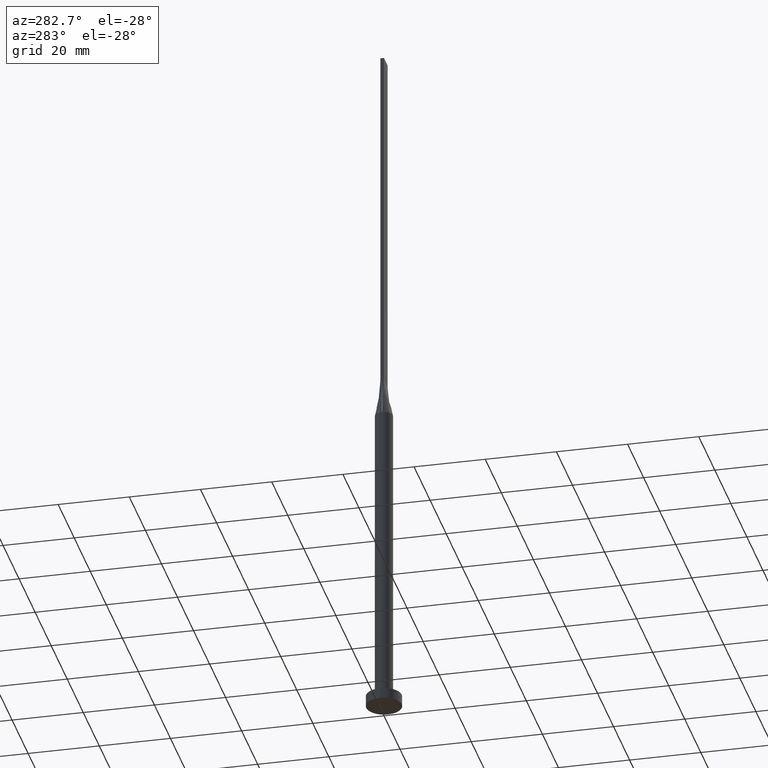
[diagram: clean part render]
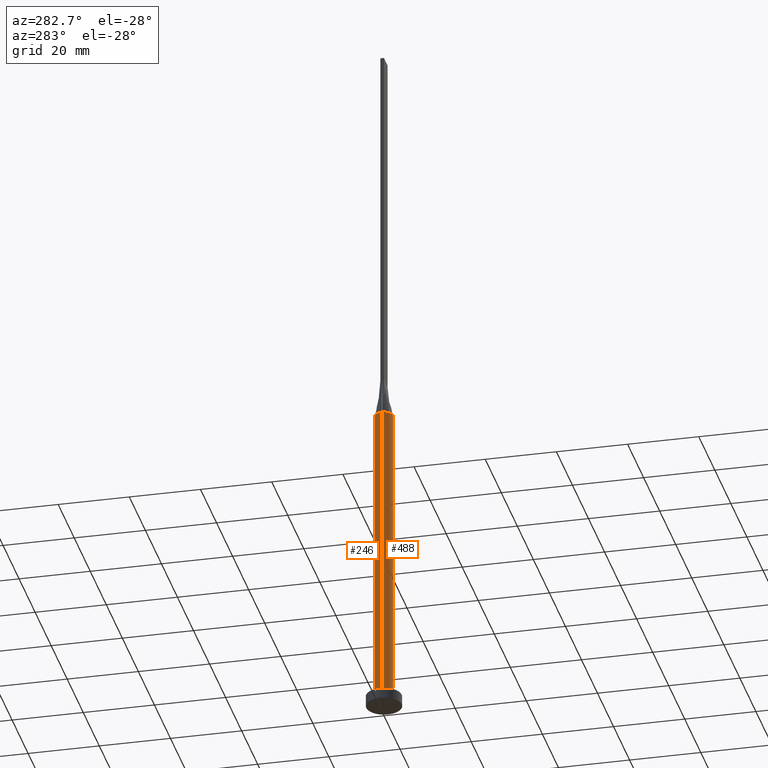
[diagram: same view with one multi-face feature highlighted, each face labeled with its STEP entity id]
A machine part, auxiliary view. The highlighted faces form ONE feature: a constant-radius fillet chain: 2 tangent blend faces with common blend radius 2.5 mm. The faces share edges in the B-rep.
Their STEP definitions:
[1] entity #246 (Cylinder):
#8 = EDGE_CURVE ( 'NONE', #249, #340, #45, .T. ) ;
#17 = DIRECTION ( 'NONE',  ( 0.000000000000000000, 0.000000000000000000, 1.000000000000000000 ) ) ;
#24 = CARTESIAN_POINT ( 'NONE',  ( 2.500000000000000000, 3.061616997868383141E-16, 90.00000000000000000 ) ) ;
#27 = VERTEX_POINT ( 'NONE', #83 ) ;
#32 = ORIENTED_EDGE ( 'NONE', *, *, #8, .F. ) ;
#45 = CIRCLE ( 'NONE', #456, 2.500000000000000000 ) ;
#46 = EDGE_CURVE ( 'NONE', #27, #336, #479, .T. ) ;
#64 = DIRECTION ( 'NONE',  ( -0.000000000000000000, -0.000000000000000000, -1.000000000000000000 ) ) ;
#71 = CARTESIAN_POINT ( 'NONE',  ( -2.440694335308545071, 0.5423767520433731004, 90.00000000000000000 ) ) ;
#83 = CARTESIAN_POINT ( 'NONE',  ( 2.500000000000000000, 3.061616997868383141E-16, 3.000000000000000000 ) ) ;
#91 = CARTESIAN_POINT ( 'NONE',  ( 1.260416918790968843, 2.182794756967427752, 90.00000000000000000 ) ) ;
#93 = CIRCLE ( 'NONE', #275, 2.500000000000000000 ) ;
#95 = DIRECTION ( 'NONE',  ( -0.000000000000000000, -0.000000000000000000, -1.000000000000000000 ) ) ;
#96 = CARTESIAN_POINT ( 'NONE',  ( -2.396350003401058082, 0.7408555563113466969, 90.00000000000001421 ) ) ;
#99 = CARTESIAN_POINT ( 'NONE',  ( -1.519400572660313253, 2.006070808634367264, 90.00000000000001421 ) ) ;
#114 = DIRECTION ( 'NONE',  ( 0.000000000000000000, 0.000000000000000000, 1.000000000000000000 ) ) ;
#143 = CARTESIAN_POINT ( 'NONE',  ( -0.6674771052374470770, 2.430579781493059421, 89.99999999999998579 ) ) ;
#144 = CARTESIAN_POINT ( 'NONE',  ( 0.000000000000000000, 0.000000000000000000, 90.00000000000000000 ) ) ;
#147 = CARTESIAN_POINT ( 'NONE',  ( -2.440694335308545071, 0.5423767520433731004, 90.00000000000000000 ) ) ;
#150 = EDGE_CURVE ( 'NONE', #340, #282, #224, .T. ) ;
#173 = LINE ( 'NONE', #524, #442 ) ;
#224 = B_SPLINE_CURVE_WITH_KNOTS ( 'NONE', 3,
 ( #309, #432, #480, #353, #533, #441, #91, #229, #269, #530, #143, #409, #99, #574, #534, #489, #96, #147 ),
 .UNSPECIFIED., .F., .F.,
 ( 4, 2, 2, 2, 2, 2, 2, 2, 4 ),
 ( 0.000000000000000000, 0.1249999999999999722, 0.2500000000000000000, 0.3750000000000000000, 0.5000000000000001110, 0.6250000000000001110, 0.7500000000000000000, 0.8750000000000000000, 1.000000000000000000 ),
 .UNSPECIFIED. ) ;
#229 = CARTESIAN_POINT ( 'NONE',  ( 0.6674771052374470770, 2.430579781493058977, 89.99999999999997158 ) ) ;
#237 = AXIS2_PLACEMENT_3D ( 'NONE', #502, #114, #373 ) ;
#240 = DIRECTION ( 'NONE',  ( 1.000000000000000000, 0.000000000000000000, 0.000000000000000000 ) ) ;
#246 = ADVANCED_FACE ( 'NONE', ( #316 ), #531, .T. ) ;
#249 = VERTEX_POINT ( 'NONE', #568 ) ;
#263 = CARTESIAN_POINT ( 'NONE',  ( -2.500000000000000000, 0.000000000000000000, 3.000000000000000000 ) ) ;
#265 = AXIS2_PLACEMENT_3D ( 'NONE', #144, #95, #271 ) ;
#269 = CARTESIAN_POINT ( 'NONE',  ( 0.3342381693191150416, 2.499999999999999556, 90.00000000000000000 ) ) ;
#271 = DIRECTION ( 'NONE',  ( -1.000000000000000000, 0.000000000000000000, 0.000000000000000000 ) ) ;
#275 = AXIS2_PLACEMENT_3D ( 'NONE', #545, #17, #240 ) ;
#278 = LINE ( 'NONE', #24, #285 ) ;
#282 = VERTEX_POINT ( 'NONE', #71 ) ;
#285 = VECTOR ( 'NONE', #64, 1000.000000000000000 ) ;
#309 = CARTESIAN_POINT ( 'NONE',  ( 2.440676307083422980, 0.5423728264510006003, 90.00000000000000000 ) ) ;
#316 = FACE_OUTER_BOUND ( 'NONE', #470, .T. ) ;
#328 = ORIENTED_EDGE ( 'NONE', *, *, #437, .F. ) ;
#333 = EDGE_CURVE ( 'NONE', #455, #336, #173, .T. ) ;
#336 = VERTEX_POINT ( 'NONE', #263 ) ;
#340 = VERTEX_POINT ( 'NONE', #430 ) ;
#353 = CARTESIAN_POINT ( 'NONE',  ( 2.093723281432890104, 1.388001797188529007, 89.99999999999995737 ) ) ;
#367 = ORIENTED_EDGE ( 'NONE', *, *, #150, .F. ) ;
#373 = DIRECTION ( 'NONE',  ( 1.000000000000000000, 0.000000000000000000, 0.000000000000000000 ) ) ;
#384 = ORIENTED_EDGE ( 'NONE', *, *, #46, .T. ) ;
#396 = CARTESIAN_POINT ( 'NONE',  ( 0.000000000000000000, 0.000000000000000000, 90.00000000000000000 ) ) ;
#409 = CARTESIAN_POINT ( 'NONE',  ( -1.260416918790968843, 2.182794756967428196, 90.00000000000000000 ) ) ;
#417 = CARTESIAN_POINT ( 'NONE',  ( -2.499645589935823420, -1.700711608024726496E-15, 90.00000000000000000 ) ) ;
#430 = CARTESIAN_POINT ( 'NONE',  ( 2.440676307083422980, 0.5423728264510006003, 90.00000000000000000 ) ) ;
#431 = DIRECTION ( 'NONE',  ( 1.000000000000000000, 0.000000000000000000, 0.000000000000000000 ) ) ;
#432 = CARTESIAN_POINT ( 'NONE',  ( 2.396350003401058526, 0.7408555563113465858, 90.00000000000001421 ) ) ;
#437 = EDGE_CURVE ( 'NONE', #282, #455, #93, .T. ) ;
#441 = CARTESIAN_POINT ( 'NONE',  ( 1.519400572660313031, 2.006070808634367708, 89.99999999999998579 ) ) ;
#442 = VECTOR ( 'NONE', #521, 1000.000000000000000 ) ;
#451 = EDGE_CURVE ( 'NONE', #249, #27, #278, .T. ) ;
#455 = VERTEX_POINT ( 'NONE', #417 ) ;
#456 = AXIS2_PLACEMENT_3D ( 'NONE', #396, #529, #431 ) ;
#470 = EDGE_LOOP ( 'NONE', ( #32, #506, #384, #501, #328, #367 ) ) ;
#479 = CIRCLE ( 'NONE', #237, 2.500000000000000000 ) ;
#480 = CARTESIAN_POINT ( 'NONE',  ( 2.323660390030918954, 0.9543733860570833283, 90.00000000000001421 ) ) ;
#489 = CARTESIAN_POINT ( 'NONE',  ( -2.323660390030918510, 0.9543733860570832173, 90.00000000000001421 ) ) ;
#501 = ORIENTED_EDGE ( 'NONE', *, *, #333, .F. ) ;
#502 = CARTESIAN_POINT ( 'NONE',  ( 0.000000000000000000, 0.000000000000000000, 3.000000000000000000 ) ) ;
#506 = ORIENTED_EDGE ( 'NONE', *, *, #451, .T. ) ;
#521 = DIRECTION ( 'NONE',  ( -0.000000000000000000, -0.000000000000000000, -1.000000000000000000 ) ) ;
#524 = CARTESIAN_POINT ( 'NONE',  ( -2.500000000000000000, 0.000000000000000000, 90.00000000000000000 ) ) ;
#529 = DIRECTION ( 'NONE',  ( 0.000000000000000000, 0.000000000000000000, 1.000000000000000000 ) ) ;
#530 = CARTESIAN_POINT ( 'NONE',  ( -0.3342381693191151526, 2.499999999999999556, 90.00000000000001421 ) ) ;
#531 = CYLINDRICAL_SURFACE ( 'NONE', #265, 2.500000000000000000 ) ;
#533 = CARTESIAN_POINT ( 'NONE',  ( 1.935644909179608186, 1.608159499248285051, 89.99999999999997158 ) ) ;
#534 = CARTESIAN_POINT ( 'NONE',  ( -2.093723281432891437, 1.388001797188529451, 90.00000000000002842 ) ) ;
#545 = CARTESIAN_POINT ( 'NONE',  ( 0.000000000000000000, 0.000000000000000000, 90.00000000000000000 ) ) ;
#568 = CARTESIAN_POINT ( 'NONE',  ( 2.499645589935823420, 5.999196936655281332E-16, 90.00000000000000000 ) ) ;
#574 = CARTESIAN_POINT ( 'NONE',  ( -1.935644909179609297, 1.608159499248285718, 89.99999999999997158 ) ) ;
[2] entity #488 (Cylinder):
#9 = CARTESIAN_POINT ( 'NONE',  ( 0.000000000000000000, 0.000000000000000000, 3.000000000000000000 ) ) ;
#14 = CARTESIAN_POINT ( 'NONE',  ( 0.000000000000000000, 0.000000000000000000, 90.00000000000000000 ) ) ;
#16 = DIRECTION ( 'NONE',  ( 0.000000000000000000, 0.000000000000000000, 1.000000000000000000 ) ) ;
#19 = ORIENTED_EDGE ( 'NONE', *, *, #310, .F. ) ;
#24 = CARTESIAN_POINT ( 'NONE',  ( 2.500000000000000000, 3.061616997868383141E-16, 90.00000000000000000 ) ) ;
#27 = VERTEX_POINT ( 'NONE', #83 ) ;
#64 = DIRECTION ( 'NONE',  ( -0.000000000000000000, -0.000000000000000000, -1.000000000000000000 ) ) ;
#83 = CARTESIAN_POINT ( 'NONE',  ( 2.500000000000000000, 3.061616997868383141E-16, 3.000000000000000000 ) ) ;
#107 = CYLINDRICAL_SURFACE ( 'NONE', #550, 2.500000000000000000 ) ;
#112 = CARTESIAN_POINT ( 'NONE',  ( 0.000000000000000000, 0.000000000000000000, 90.00000000000000000 ) ) ;
#141 = DIRECTION ( 'NONE',  ( -1.000000000000000000, 0.000000000000000000, 0.000000000000000000 ) ) ;
#154 = DIRECTION ( 'NONE',  ( -0.000000000000000000, -0.000000000000000000, -1.000000000000000000 ) ) ;
#164 = EDGE_CURVE ( 'NONE', #197, #249, #382, .T. ) ;
#167 = AXIS2_PLACEMENT_3D ( 'NONE', #418, #16, #549 ) ;
#173 = LINE ( 'NONE', #524, #442 ) ;
#190 = DIRECTION ( 'NONE',  ( 0.000000000000000000, 0.000000000000000000, 1.000000000000000000 ) ) ;
#195 = DIRECTION ( 'NONE',  ( 0.000000000000000000, 0.000000000000000000, 1.000000000000000000 ) ) ;
#197 = VERTEX_POINT ( 'NONE', #270 ) ;
#249 = VERTEX_POINT ( 'NONE', #568 ) ;
#256 = AXIS2_PLACEMENT_3D ( 'NONE', #9, #190, #365 ) ;
#257 = ORIENTED_EDGE ( 'NONE', *, *, #554, .F. ) ;
#263 = CARTESIAN_POINT ( 'NONE',  ( -2.500000000000000000, 0.000000000000000000, 3.000000000000000000 ) ) ;
#268 = EDGE_LOOP ( 'NONE', ( #448, #322, #19, #257, #452, #525 ) ) ;
#270 = CARTESIAN_POINT ( 'NONE',  ( 2.440706242928429415, -0.5423794613208688942, 90.00000000000000000 ) ) ;
#278 = LINE ( 'NONE', #24, #285 ) ;
#279 = DIRECTION ( 'NONE',  ( 1.000000000000000000, -4.440892098500626162E-15, 0.000000000000000000 ) ) ;
#285 = VECTOR ( 'NONE', #64, 1000.000000000000000 ) ;
#305 = CARTESIAN_POINT ( 'NONE',  ( -2.440688158044365785, -0.5423755258804862089, 90.00000000000000000 ) ) ;
#310 = EDGE_CURVE ( 'NONE', #371, #197, #560, .T. ) ;
#322 = ORIENTED_EDGE ( 'NONE', *, *, #164, .F. ) ;
#333 = EDGE_CURVE ( 'NONE', #455, #336, #173, .T. ) ;
#336 = VERTEX_POINT ( 'NONE', #263 ) ;
#365 = DIRECTION ( 'NONE',  ( 1.000000000000000000, 0.000000000000000000, 0.000000000000000000 ) ) ;
#371 = VERTEX_POINT ( 'NONE', #305 ) ;
#382 = CIRCLE ( 'NONE', #573, 2.500000000000000000 ) ;
#417 = CARTESIAN_POINT ( 'NONE',  ( -2.499645589935823420, -1.700711608024726496E-15, 90.00000000000000000 ) ) ;
#418 = CARTESIAN_POINT ( 'NONE',  ( 0.000000000000000000, 0.000000000000000000, 90.00000000000000000 ) ) ;
#442 = VECTOR ( 'NONE', #521, 1000.000000000000000 ) ;
#445 = EDGE_CURVE ( 'NONE', #336, #27, #481, .T. ) ;
#448 = ORIENTED_EDGE ( 'NONE', *, *, #451, .F. ) ;
#451 = EDGE_CURVE ( 'NONE', #249, #27, #278, .T. ) ;
#452 = ORIENTED_EDGE ( 'NONE', *, *, #333, .T. ) ;
#455 = VERTEX_POINT ( 'NONE', #417 ) ;
#481 = CIRCLE ( 'NONE', #256, 2.500000000000000000 ) ;
#484 = CARTESIAN_POINT ( 'NONE',  ( 0.000000000000000000, 0.000000000000000000, 90.00000000000000000 ) ) ;
#486 = DIRECTION ( 'NONE',  ( 0.000000000000000000, 0.000000000000000000, 1.000000000000000000 ) ) ;
#488 = ADVANCED_FACE ( 'NONE', ( #543 ), #107, .T. ) ;
#521 = DIRECTION ( 'NONE',  ( -0.000000000000000000, -0.000000000000000000, -1.000000000000000000 ) ) ;
#524 = CARTESIAN_POINT ( 'NONE',  ( -2.500000000000000000, 0.000000000000000000, 90.00000000000000000 ) ) ;
#525 = ORIENTED_EDGE ( 'NONE', *, *, #445, .T. ) ;
#532 = CIRCLE ( 'NONE', #562, 2.500000000000000000 ) ;
#543 = FACE_OUTER_BOUND ( 'NONE', #268, .T. ) ;
#549 = DIRECTION ( 'NONE',  ( 1.000000000000000000, 0.000000000000000000, 0.000000000000000000 ) ) ;
#550 = AXIS2_PLACEMENT_3D ( 'NONE', #14, #154, #141 ) ;
#554 = EDGE_CURVE ( 'NONE', #455, #371, #532, .T. ) ;
#559 = DIRECTION ( 'NONE',  ( 1.000000000000000000, 0.000000000000000000, 0.000000000000000000 ) ) ;
#560 = CIRCLE ( 'NONE', #167, 2.500000000000000000 ) ;
#562 = AXIS2_PLACEMENT_3D ( 'NONE', #112, #195, #559 ) ;
#568 = CARTESIAN_POINT ( 'NONE',  ( 2.499645589935823420, 5.999196936655281332E-16, 90.00000000000000000 ) ) ;
#573 = AXIS2_PLACEMENT_3D ( 'NONE', #484, #486, #279 ) ;